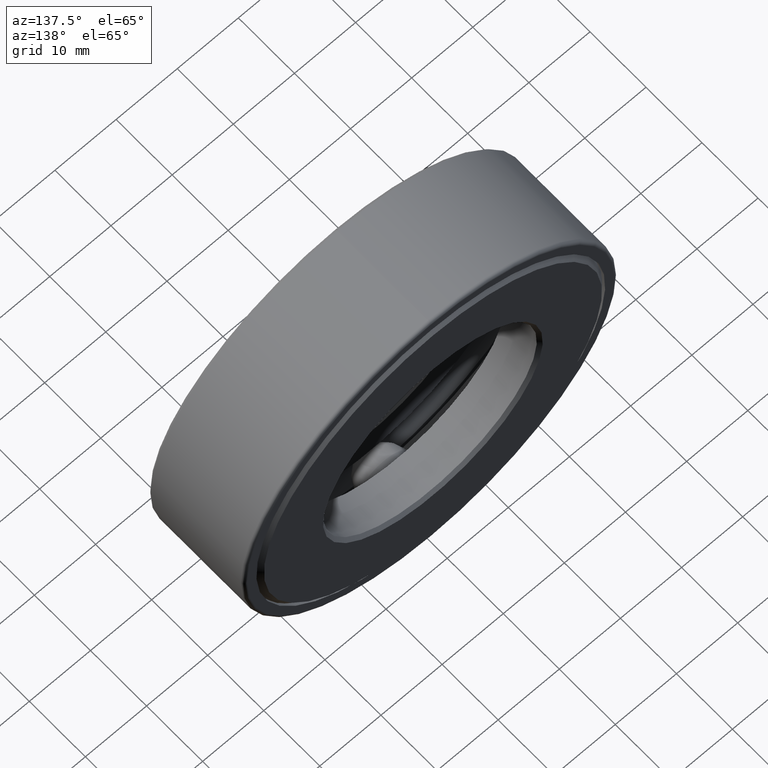
[diagram: clean part render]
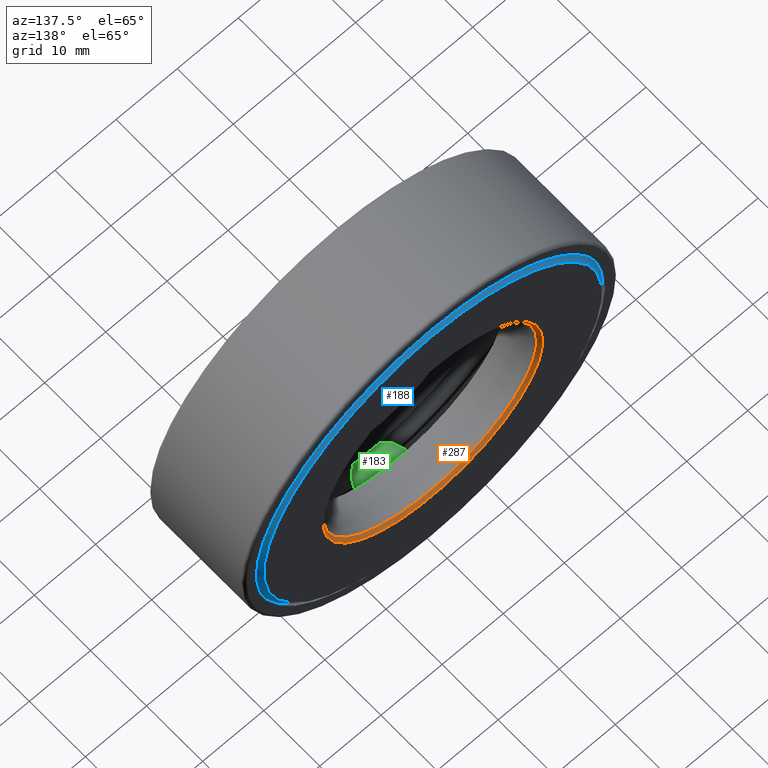
[diagram: same view with three faces highlighted in distinct colors, each labeled with its STEP entity id]
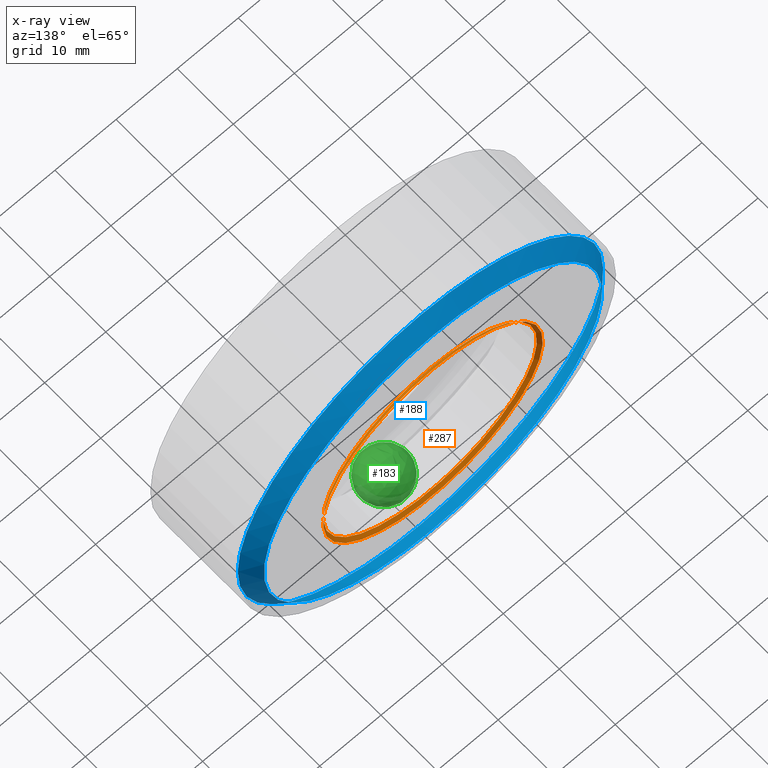
[diagram: x-ray of the same camera — body ghosted, the three highlighted faces saturated]
A machine part, auxiliary view with three faces highlighted in distinct colors.
The next image is the same camera in x-ray (body ghosted, the three faces saturated) — at least one of them is partly hidden behind the body in this view.
Their STEP definitions:

[orange] entity #287 — the highlighted conical surface has half-angle 45 deg.
#4 = DIRECTION ( 'NONE',  ( -0.0000000000000000000, 1.000000000000000000, -0.0000000000000000000 ) ) ;
#8 = VERTEX_POINT ( 'NONE', #221 ) ;
#47 = CONICAL_SURFACE ( 'NONE', #523, 0.6875000000000000000, 0.7853981633974415100 ) ;
#50 = ORIENTED_EDGE ( 'NONE', *, *, #339, .T. ) ;
#53 = EDGE_LOOP ( 'NONE', ( #50 ) ) ;
#64 = DIRECTION ( 'NONE',  ( -0.0000000000000000000, 1.000000000000000000, -0.0000000000000000000 ) ) ;
#150 = AXIS2_PLACEMENT_3D ( 'NONE', #309, #4, #157 ) ;
#153 = CARTESIAN_POINT ( 'NONE',  ( 0.0000000000000000000, 0.6674999999999995400, 0.0000000000000000000 ) ) ;
#157 = DIRECTION ( 'NONE',  ( 0.0000000000000000000, 0.0000000000000000000, 1.000000000000000000 ) ) ;
#180 = CIRCLE ( 'NONE', #293, 0.7075000000000001300 ) ;
#211 = DIRECTION ( 'NONE',  ( 0.0000000000000000000, 0.0000000000000000000, 1.000000000000000000 ) ) ;
#213 = CARTESIAN_POINT ( 'NONE',  ( 0.0000000000000000000, 0.6875000000000000000, 0.7075000000000001300 ) ) ;
#221 = CARTESIAN_POINT ( 'NONE',  ( 0.0000000000000000000, 0.6674999999999995400, 0.6875000000000000000 ) ) ;
#257 = EDGE_LOOP ( 'NONE', ( #518 ) ) ;
#287 = ADVANCED_FACE ( 'NONE', ( #391, #302 ), #47, .F. ) ;
#293 = AXIS2_PLACEMENT_3D ( 'NONE', #351, #64, #211 ) ;
#302 = FACE_BOUND ( 'NONE', #257, .T. ) ;
#309 = CARTESIAN_POINT ( 'NONE',  ( 0.0000000000000000000, 0.6674999999999995400, 0.0000000000000000000 ) ) ;
#339 = EDGE_CURVE ( 'NONE', #380, #380, #180, .T. ) ;
#348 = EDGE_CURVE ( 'NONE', #8, #8, #534, .T. ) ;
#351 = CARTESIAN_POINT ( 'NONE',  ( 0.0000000000000000000, 0.6875000000000000000, 0.0000000000000000000 ) ) ;
#380 = VERTEX_POINT ( 'NONE', #213 ) ;
#391 = FACE_OUTER_BOUND ( 'NONE', #53, .T. ) ;
#482 = DIRECTION ( 'NONE',  ( -0.0000000000000000000, 1.000000000000000000, -0.0000000000000000000 ) ) ;
#518 = ORIENTED_EDGE ( 'NONE', *, *, #348, .F. ) ;
#523 = AXIS2_PLACEMENT_3D ( 'NONE', #153, #482, #575 ) ;
#534 = CIRCLE ( 'NONE', #150, 0.6875000000000000000 ) ;
#575 = DIRECTION ( 'NONE',  ( 0.0000000000000000000, 0.0000000000000000000, 1.000000000000000000 ) ) ;

[blue] entity #188 — the highlighted conical surface has half-angle 45 deg.
#46 = FACE_OUTER_BOUND ( 'NONE', #517, .T. ) ;
#55 = CARTESIAN_POINT ( 'NONE',  ( 0.0000000000000000000, 0.6875000000000000000, 0.0000000000000000000 ) ) ;
#62 = CIRCLE ( 'NONE', #300, 1.176124999999999600 ) ;
#92 = ORIENTED_EDGE ( 'NONE', *, *, #139, .T. ) ;
#104 = DIRECTION ( 'NONE',  ( 0.0000000000000000000, 0.0000000000000000000, 1.000000000000000000 ) ) ;
#111 = EDGE_LOOP ( 'NONE', ( #200 ) ) ;
#124 = VERTEX_POINT ( 'NONE', #193 ) ;
#139 = EDGE_CURVE ( 'NONE', #124, #124, #62, .T. ) ;
#188 = ADVANCED_FACE ( 'NONE', ( #46, #530 ), #480, .T. ) ;
#193 = CARTESIAN_POINT ( 'NONE',  ( 0.0000000000000000000, 0.5995000000000001400, 1.176124999999999600 ) ) ;
#200 = ORIENTED_EDGE ( 'NONE', *, *, #297, .F. ) ;
#239 = DIRECTION ( 'NONE',  ( 0.0000000000000000000, -1.000000000000000000, 0.0000000000000000000 ) ) ;
#290 = DIRECTION ( 'NONE',  ( 0.0000000000000000000, 0.0000000000000000000, 1.000000000000000000 ) ) ;
#291 = CARTESIAN_POINT ( 'NONE',  ( 0.0000000000000000000, 0.6875000000000000000, 0.0000000000000000000 ) ) ;
#297 = EDGE_CURVE ( 'NONE', #571, #571, #590, .T. ) ;
#300 = AXIS2_PLACEMENT_3D ( 'NONE', #418, #564, #290 ) ;
#328 = DIRECTION ( 'NONE',  ( 0.0000000000000000000, 0.0000000000000000000, -1.000000000000000000 ) ) ;
#365 = AXIS2_PLACEMENT_3D ( 'NONE', #55, #386, #104 ) ;
#386 = DIRECTION ( 'NONE',  ( -0.0000000000000000000, 1.000000000000000000, -0.0000000000000000000 ) ) ;
#418 = CARTESIAN_POINT ( 'NONE',  ( 0.0000000000000000000, 0.5995000000000001400, 0.0000000000000000000 ) ) ;
#462 = AXIS2_PLACEMENT_3D ( 'NONE', #291, #239, #328 ) ;
#480 = CONICAL_SURFACE ( 'NONE', #462, 1.088124999999999800, 0.7853981633974482800 ) ;
#517 = EDGE_LOOP ( 'NONE', ( #92 ) ) ;
#530 = FACE_BOUND ( 'NONE', #111, .T. ) ;
#564 = DIRECTION ( 'NONE',  ( -0.0000000000000000000, 1.000000000000000000, -0.0000000000000000000 ) ) ;
#571 = VERTEX_POINT ( 'NONE', #591 ) ;
#590 = CIRCLE ( 'NONE', #365, 1.088124999999999800 ) ;
#591 = CARTESIAN_POINT ( 'NONE',  ( 0.0000000000000000000, 0.6875000000000000000, 1.088124999999999800 ) ) ;

[green] entity #183 — the highlighted spherical surface has radius 3.9688 mm.
#90 = SPHERICAL_SURFACE ( 'NONE', #158, 0.1562500000000000000 ) ;
#145 = DIRECTION ( 'NONE',  ( 1.047444401652939400E-014, 0.0000000000000000000, 1.000000000000000000 ) ) ;
#158 = AXIS2_PLACEMENT_3D ( 'NONE', #330, #565, #145 ) ;
#183 = ADVANCED_FACE ( 'NONE', ( ), #90, .T. ) ;
#330 = CARTESIAN_POINT ( 'NONE',  ( -1.066167470332486300E-014, 0.3437500000000000000, -1.017874999999999900 ) ) ;
#565 = DIRECTION ( 'NONE',  ( 1.000000000000000000, 0.0000000000000000000, -1.047444401652939400E-014 ) ) ;